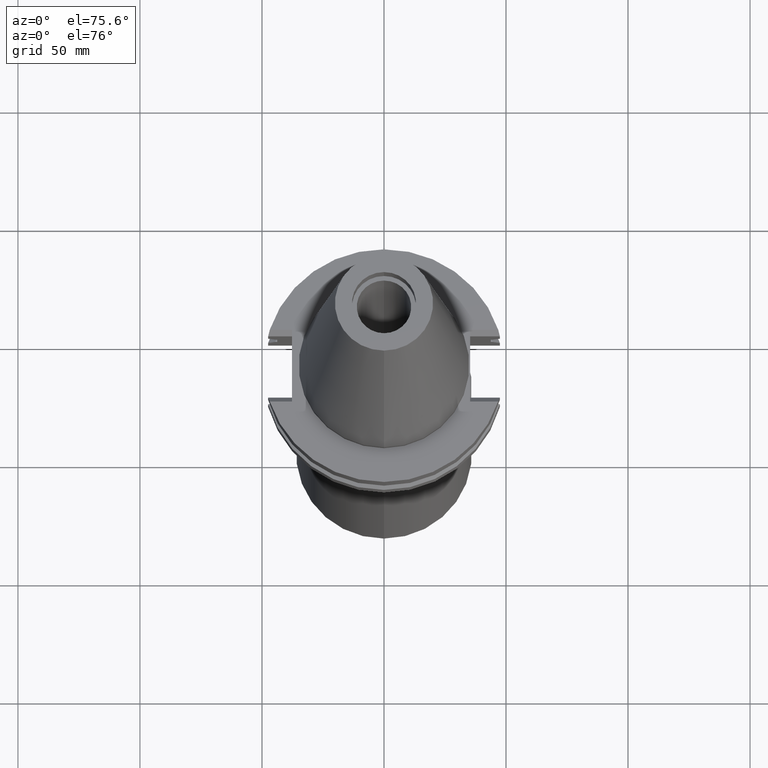
[diagram: clean part render]
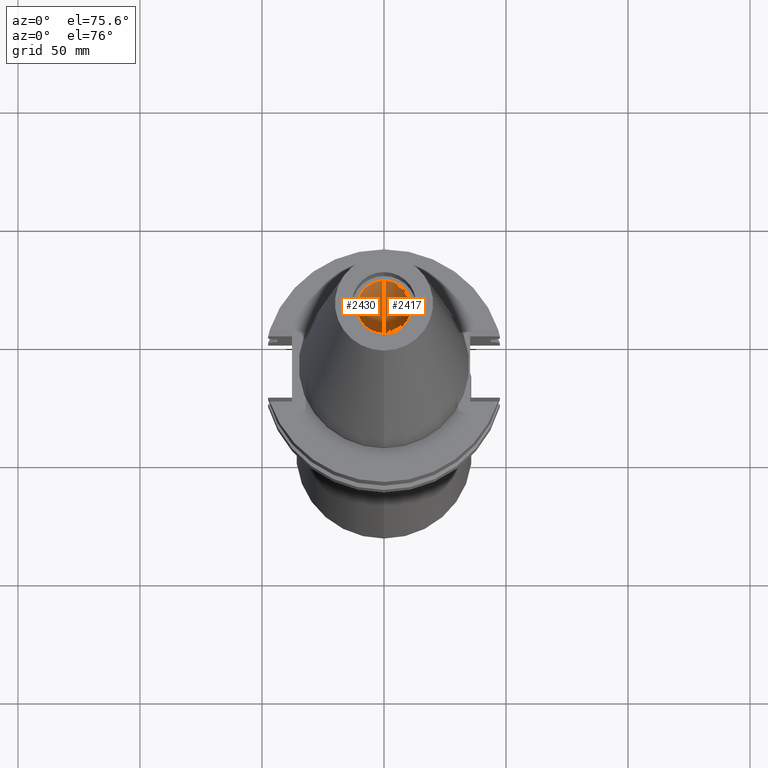
[diagram: same view with one multi-face feature highlighted, each face labeled with its STEP entity id]
A machine part, auxiliary view. The highlighted faces form ONE feature: a constant-radius fillet chain: 2 tangent blend faces with common blend radius 11.15 mm. The faces share edges in the B-rep.
Their STEP definitions:
[1] entity #2417 (Cylinder):
#1190=DIRECTION('',(0.E0,0.E0,1.E0));
#1191=VECTOR('',#1190,9.525E1);
#1192=CARTESIAN_POINT('',(0.E0,1.115E1,-1.136868377216E-13));
#1193=LINE('',#1192,#1191);
#1197=CARTESIAN_POINT('',(0.E0,0.E0,-8.526512829121E-14));
#1198=DIRECTION('',(0.E0,0.E0,1.E0));
#1199=DIRECTION('',(0.E0,-1.E0,0.E0));
#1200=AXIS2_PLACEMENT_3D('',#1197,#1198,#1199);
#1205=DIRECTION('',(0.E0,0.E0,1.E0));
#1206=VECTOR('',#1205,9.525E1);
#1207=CARTESIAN_POINT('',(0.E0,-1.115E1,-1.136868377216E-13));
#1208=LINE('',#1207,#1206);
#1228=CARTESIAN_POINT('',(0.E0,0.E0,9.525E1));
#1229=DIRECTION('',(0.E0,0.E0,1.E0));
#1230=DIRECTION('',(0.E0,-1.E0,0.E0));
#1231=AXIS2_PLACEMENT_3D('',#1228,#1229,#1230);
#1374=CARTESIAN_POINT('',(0.E0,1.115E1,-1.136868377216E-13));
#1375=VERTEX_POINT('',#1374);
#1376=CARTESIAN_POINT('',(0.E0,-1.115E1,-1.136868377216E-13));
#1377=VERTEX_POINT('',#1376);
#1378=CARTESIAN_POINT('',(0.E0,1.115E1,9.525E1));
#1379=VERTEX_POINT('',#1378);
#1380=CARTESIAN_POINT('',(0.E0,-1.115E1,9.525E1));
#1381=VERTEX_POINT('',#1380);
#2403=CARTESIAN_POINT('',(0.E0,0.E0,-1.78435E2));
#2404=DIRECTION('',(0.E0,0.E0,1.E0));
#2405=DIRECTION('',(0.E0,1.E0,0.E0));
#2406=AXIS2_PLACEMENT_3D('',#2403,#2404,#2405);
#2407=CYLINDRICAL_SURFACE('',#2406,1.115E1);
#2409=ORIENTED_EDGE('',*,*,#2408,.T.);
#2411=ORIENTED_EDGE('',*,*,#2410,.F.);
#2413=ORIENTED_EDGE('',*,*,#2412,.F.);
#2414=ORIENTED_EDGE('',*,*,#2396,.T.);
#2415=EDGE_LOOP('',(#2409,#2411,#2413,#2414));
#2416=FACE_OUTER_BOUND('',#2415,.F.);
#1201=CIRCLE('',#1200,1.115E1);
#1232=CIRCLE('',#1231,1.115E1);
#2396=EDGE_CURVE('',#1377,#1375,#1201,.T.);
#2408=EDGE_CURVE('',#1375,#1379,#1193,.T.);
#2410=EDGE_CURVE('',#1381,#1379,#1232,.T.);
#2412=EDGE_CURVE('',#1377,#1381,#1208,.T.);
#2417=ADVANCED_FACE('',(#2416),#2407,.F.);
[2] entity #2430 (Cylinder):
#1175=CARTESIAN_POINT('',(0.E0,0.E0,-8.526512829121E-14));
#1176=DIRECTION('',(0.E0,0.E0,-1.E0));
#1177=DIRECTION('',(0.E0,-1.E0,0.E0));
#1178=AXIS2_PLACEMENT_3D('',#1175,#1176,#1177);
#1190=DIRECTION('',(0.E0,0.E0,1.E0));
#1191=VECTOR('',#1190,9.525E1);
#1192=CARTESIAN_POINT('',(0.E0,1.115E1,-1.136868377216E-13));
#1193=LINE('',#1192,#1191);
#1205=DIRECTION('',(0.E0,0.E0,1.E0));
#1206=VECTOR('',#1205,9.525E1);
#1207=CARTESIAN_POINT('',(0.E0,-1.115E1,-1.136868377216E-13));
#1208=LINE('',#1207,#1206);
#1236=CARTESIAN_POINT('',(0.E0,0.E0,9.525E1));
#1237=DIRECTION('',(0.E0,0.E0,1.E0));
#1238=DIRECTION('',(0.E0,1.E0,0.E0));
#1239=AXIS2_PLACEMENT_3D('',#1236,#1237,#1238);
#1374=CARTESIAN_POINT('',(0.E0,1.115E1,-1.136868377216E-13));
#1375=VERTEX_POINT('',#1374);
#1376=CARTESIAN_POINT('',(0.E0,-1.115E1,-1.136868377216E-13));
#1377=VERTEX_POINT('',#1376);
#1378=CARTESIAN_POINT('',(0.E0,1.115E1,9.525E1));
#1379=VERTEX_POINT('',#1378);
#1380=CARTESIAN_POINT('',(0.E0,-1.115E1,9.525E1));
#1381=VERTEX_POINT('',#1380);
#2418=CARTESIAN_POINT('',(0.E0,0.E0,-1.78435E2));
#2419=DIRECTION('',(0.E0,0.E0,1.E0));
#2420=DIRECTION('',(0.E0,1.E0,0.E0));
#2421=AXIS2_PLACEMENT_3D('',#2418,#2419,#2420);
#2422=CYLINDRICAL_SURFACE('',#2421,1.115E1);
#2423=ORIENTED_EDGE('',*,*,#2408,.F.);
#2424=ORIENTED_EDGE('',*,*,#2385,.F.);
#2425=ORIENTED_EDGE('',*,*,#2412,.T.);
#2427=ORIENTED_EDGE('',*,*,#2426,.F.);
#2428=EDGE_LOOP('',(#2423,#2424,#2425,#2427));
#2429=FACE_OUTER_BOUND('',#2428,.F.);
#1179=CIRCLE('',#1178,1.115E1);
#1240=CIRCLE('',#1239,1.115E1);
#2385=EDGE_CURVE('',#1377,#1375,#1179,.T.);
#2408=EDGE_CURVE('',#1375,#1379,#1193,.T.);
#2412=EDGE_CURVE('',#1377,#1381,#1208,.T.);
#2426=EDGE_CURVE('',#1379,#1381,#1240,.T.);
#2430=ADVANCED_FACE('',(#2429),#2422,.F.);